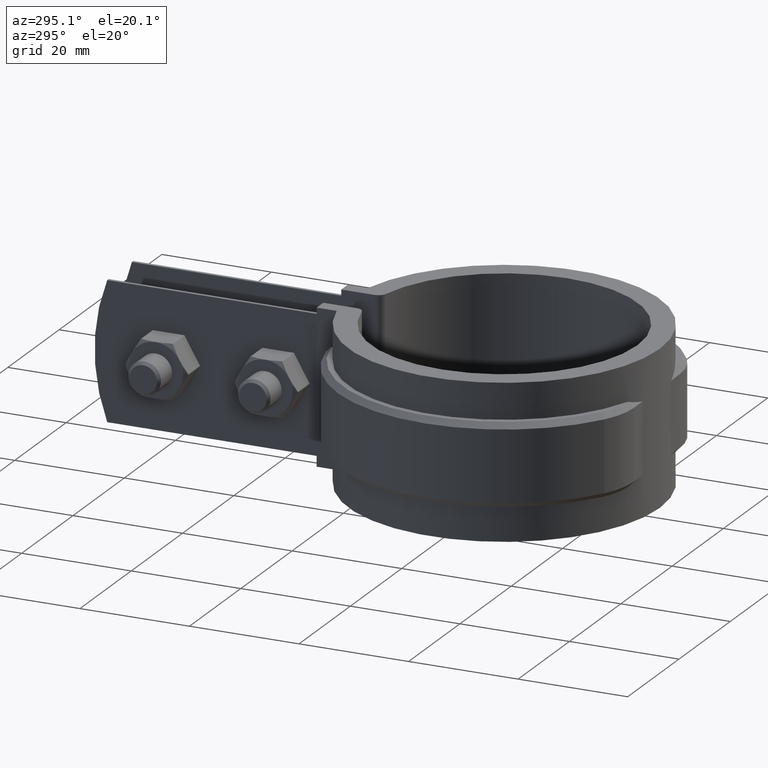
[diagram: clean part render]
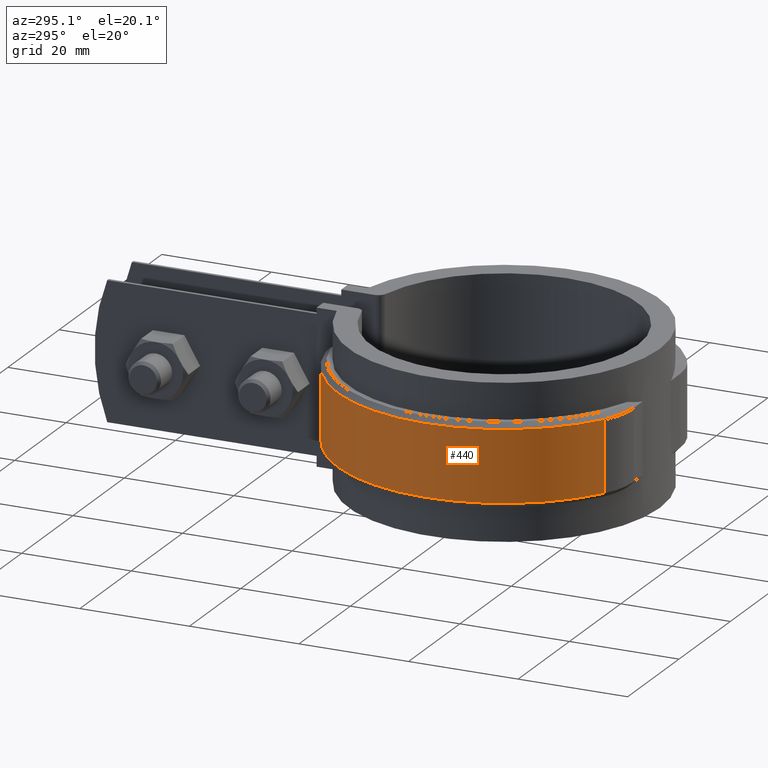
[diagram: same view with one face highlighted and labeled with its STEP entity id]
A machine part, auxiliary view. The second image highlights one B-rep face of the part: STEP entity #440.
In plain terms, the highlighted cylindrical surface (partial cylindrical patch) has radius 30.395 mm, axis along (0, 0, -1).
Its self-contained STEP definition (entity closure, byte-faithful):
#440 = ADVANCED_FACE( '', ( #796 ), #797, .T. );
#796 = FACE_OUTER_BOUND( '', #1886, .T. );
#797 = CYLINDRICAL_SURFACE( '', #1887, 30.3950000000000 );
#1886 = EDGE_LOOP( '', ( #4412, #4413, #4414, #4415 ) );
#1887 = AXIS2_PLACEMENT_3D( '', #4416, #4417, #4418 );
#4412 = ORIENTED_EDGE( '', *, *, #5553, .F. );
#4413 = ORIENTED_EDGE( '', *, *, #5554, .T. );
#4414 = ORIENTED_EDGE( '', *, *, #5555, .T. );
#4415 = ORIENTED_EDGE( '', *, *, #5551, .T. );
#4416 = CARTESIAN_POINT( '', ( -8.67361737988404E-016, -3.46944695195361E-015, -20.0000000000000 ) );
#4417 = DIRECTION( '', ( 0.000000000000000, 0.000000000000000, -1.00000000000000 ) );
#4418 = DIRECTION( '', ( 0.194983714095246, 0.980806480014087, 0.000000000000000 ) );
#5551 = EDGE_CURVE( '', #6357, #6390, #6393, .T. );
#5553 = EDGE_CURVE( '', #6395, #6390, #6396, .T. );
#5554 = EDGE_CURVE( '', #6395, #6397, #6398, .F. );
#5555 = EDGE_CURVE( '', #6397, #6357, #6399, .T. );
#6357 = VERTEX_POINT( '', #9766 );
#6390 = VERTEX_POINT( '', #9825 );
#6393 = CIRCLE( '', #9831, 30.3950000000000 );
#6395 = VERTEX_POINT( '', #9833 );
#6396 = LINE( '', #9834, #9835 );
#6397 = VERTEX_POINT( '', #9836 );
#6398 = CIRCLE( '', #9837, 30.3950000000000 );
#6399 = LINE( '', #9838, #9839 );
#9766 = CARTESIAN_POINT( '', ( -16.0865111739769, -25.7891485561179, -6.00000000000000 ) );
#9825 = CARTESIAN_POINT( '', ( -6.10000000000002, 29.7766019720182, -6.00000000000000 ) );
#9831 = AXIS2_PLACEMENT_3D( '', #10745, #10746, #10747 );
#9833 = CARTESIAN_POINT( '', ( -6.10000000000002, 29.7766019720182, -19.0000000000000 ) );
#9834 = CARTESIAN_POINT( '', ( -6.10000000000002, 29.7766019720182, -20.0000000000000 ) );
#9835 = VECTOR( '', #10751, 1000.00000000000 );
#9836 = CARTESIAN_POINT( '', ( -16.0865111739769, -25.7891485561179, -19.0000000000000 ) );
#9837 = AXIS2_PLACEMENT_3D( '', #10752, #10753, #10754 );
#9838 = CARTESIAN_POINT( '', ( -16.0865111739769, -25.7891485561179, -20.0000000000000 ) );
#9839 = VECTOR( '', #10755, 1000.00000000000 );
#10745 = CARTESIAN_POINT( '', ( -8.67361737988404E-016, -3.46944695195361E-015, -6.00000000000000 ) );
#10746 = DIRECTION( '', ( 0.000000000000000, 0.000000000000000, -1.00000000000000 ) );
#10747 = DIRECTION( '', ( -1.00000000000000, 0.000000000000000, 0.000000000000000 ) );
#10751 = DIRECTION( '', ( 0.000000000000000, 0.000000000000000, 1.00000000000000 ) );
#10752 = CARTESIAN_POINT( '', ( -8.67361737988404E-016, -3.46944695195361E-015, -19.0000000000000 ) );
#10753 = DIRECTION( '', ( 0.000000000000000, 0.000000000000000, -1.00000000000000 ) );
#10754 = DIRECTION( '', ( -1.00000000000000, 0.000000000000000, 0.000000000000000 ) );
#10755 = DIRECTION( '', ( 0.000000000000000, 0.000000000000000, 1.00000000000000 ) );